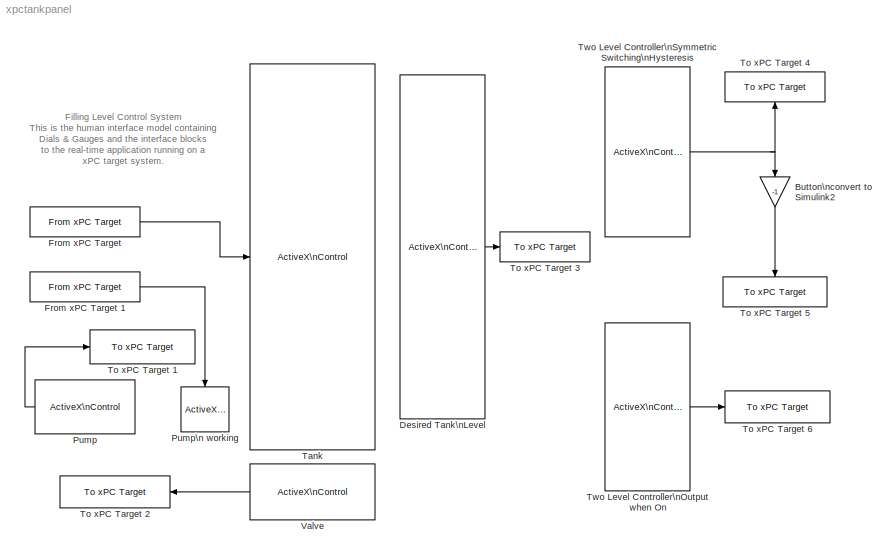
MODEL xpctankpanel
KIND model
BLOCK [Reference]   Pump\n  working  REF=dnglibv1/ActiveX\nControl
  Ports = [1]
  SourceBlock = dnglibv1/ActiveX\nControl
  SourceType = ActiveX Block
  UserData = DataTag0
  UserDataPersistent = on
  border = off
  connect = input
  dialOut = 0
  inblock = on
  init = hActx.configuration='LED\\Individual\\Red Circular Bitmap';hActx.value=1;hActx.Mode=0;hActx.MouseControl=0;
  input = Value
  progid = MWLED.ledctrl.1
  updateParam = 0
BLOCK [Gain] Button\nconvert to Simulink2
  Gain = -1
BLOCK [Reference] Desired Tank\nLevel  REF=dnglibv1/ActiveX\nControl
  Ports = [0, 1]
  SourceBlock = dnglibv1/ActiveX\nControl
  SourceType = ActiveX Block
  UserData = DataTag1
  UserDataPersistent = on
  border = off
  connect = output
  dialOut = 0
  dialOutEvent = Slide Change
  inblock = on
  init = hActx.configuration='Slider\\Big Numbers';
  output = Value
  progid = mwslider.sliderctrl.1
  updateParam = 0
BLOCK [Reference] From xPC Target    REF=xpclib/Misc./From xPC Target 
  Ports = [0, 1]
  ShowPortLabels = on
  SourceBlock = xpclib/Misc./From xPC Target
  SourceType = xpc2dng
  appname = xpctank
  blockpath = TankLevel
  ts = 1
BLOCK [Reference] From xPC Target 1  REF=xpclib/Misc./From xPC Target 
  Ports = [0, 1]
  ShowPortLabels = on
  SourceBlock = xpclib/Misc./From xPC Target
  SourceType = xpc2dng
  appname = xpctank
  blockpath = ControlValue
  ts = 1
BLOCK [Reference] Pump  REF=dnglibv1/ActiveX\nControl
  Ports = [0, 1]
  SourceBlock = dnglibv1/ActiveX\nControl
  SourceType = ActiveX Block
  UserData = DataTag2
  UserDataPersistent = on
  border = off
  connect = output
  dialOut = 0
  dialOutEvent = Click
  inblock = on
  output = Value
  progid = mwtoggle.togglectrl.1
  updateParam = 0
BLOCK [Reference] Tank  REF=dnglibv1/ActiveX\nControl
  Ports = [1]
  SourceBlock = dnglibv1/ActiveX\nControl
  SourceType = ActiveX Block
  UserData = DataTag3
  UserDataPersistent = on
  border = off
  connect = input
  dialOut = 0
  inblock = on
  init = hActx.configuration='Slider\\Water Tank';
  input = Value
  progid = mwslider.sliderctrl.1
  updateParam = 0
BLOCK [Reference] To xPC Target 1  REF=xpclib/Misc./To xPC Target 
  Ports = [1]
  ShowPortLabels = on
  SourceBlock = xpclib/Misc./To xPC Target
  SourceType = dng2xpc
  appname = xpctank
  blockpath = PumpSwitch
  paramname = Value
BLOCK [Reference] To xPC Target 2  REF=xpclib/Misc./To xPC Target 
  Ports = [1]
  ShowPortLabels = on
  SourceBlock = xpclib/Misc./To xPC Target
  SourceType = dng2xpc
  appname = xpctank
  blockpath = ValveSwitch
  paramname = Value
BLOCK [Reference] To xPC Target 3  REF=xpclib/Misc./To xPC Target 
  Ports = [1]
  ShowPortLabels = on
  SourceBlock = xpclib/Misc./To xPC Target
  SourceType = dng2xpc
  appname = xpctank
  blockpath = SetPoint
  paramname = Value
BLOCK [Reference] To xPC Target 4  REF=xpclib/Misc./To xPC Target 
  Ports = [1]
  ShowPortLabels = on
  SourceBlock = xpclib/Misc./To xPC Target
  SourceType = dng2xpc
  appname = xpctank
  blockpath = Controller
  paramname = OnSwitchValue
BLOCK [Reference] To xPC Target 5  REF=xpclib/Misc./To xPC Target 
  Ports = [1]
  ShowPortLabels = on
  SourceBlock = xpclib/Misc./To xPC Target
  SourceType = dng2xpc
  appname = xpctank
  blockpath = Controller
  paramname = OffSwitchValue
BLOCK [Reference] To xPC Target 6  REF=xpclib/Misc./To xPC Target 
  Ports = [1]
  ShowPortLabels = on
  SourceBlock = xpclib/Misc./To xPC Target
  SourceType = dng2xpc
  appname = xpctank
  blockpath = Controller
  paramname = OnOutputValue
BLOCK [Reference] Two Level Controller\nOutput when On  REF=dnglibv1/ActiveX\nControl
  Ports = [0, 1]
  SourceBlock = dnglibv1/ActiveX\nControl
  SourceType = ActiveX Block
  UserData = DataTag4
  UserDataPersistent = on
  border = off
  connect = output
  dialOut = 0
  dialOutEvent = Slide Change
  inblock = on
  init = hActx.configuration='Slider\\Big Numbers';
  output = Value
  progid = mwslider.sliderctrl.1
  updateParam = 0
BLOCK [Reference] Two Level Controller\nSymmetric Switching\nHysteresis  REF=dnglibv1/ActiveX\nControl
  Ports = [0, 1]
  SourceBlock = dnglibv1/ActiveX\nControl
  SourceType = ActiveX Block
  UserData = DataTag5
  UserDataPersistent = on
  border = off
  connect = output
  dialOut = 0
  dialOutEvent = Slide Change
  inblock = on
  init = hActx.configuration='Slider\\Big Numbers';
  output = Value
  progid = mwslider.sliderctrl.1
  updateParam = 0
BLOCK [Reference] Valve  REF=dnglibv1/ActiveX\nControl
  Ports = [0, 1]
  SourceBlock = dnglibv1/ActiveX\nControl
  SourceType = ActiveX Block
  UserData = DataTag6
  UserDataPersistent = on
  border = off
  connect = output
  dialOut = 0
  dialOutEvent = Click
  inblock = on
  output = Value
  progid = mwtoggle.togglectrl.1
  updateParam = 0
ANNOTATION (root): Filling Level Control System\nThis is the human interface model containing\nDials & Gauges and the interface blocks\nto the real-time application running on a \nxPC target system.
LINE Button\nconvert to Simulink2:1 -> To xPC Target 5:1
LINE Desired Tank\nLevel:1 -> To xPC Target 3:1
LINE From xPC Target  :1 -> Tank:1
LINE From xPC Target 1:1 ->   Pump\n  working:1
LINE Pump:1 -> To xPC Target 1:1
LINE Two Level Controller\nOutput when On:1 -> To xPC Target 6:1
NET Two Level Controller\nSymmetric Switching\nHysteresis:1 -> Button\nconvert to Simulink2:1, To xPC Target 4:1
LINE Valve:1 -> To xPC Target 2:1
note: NET lines group one-source signal fan-out (src -> all destinations, sorted); 1:1 wires keep LINE
